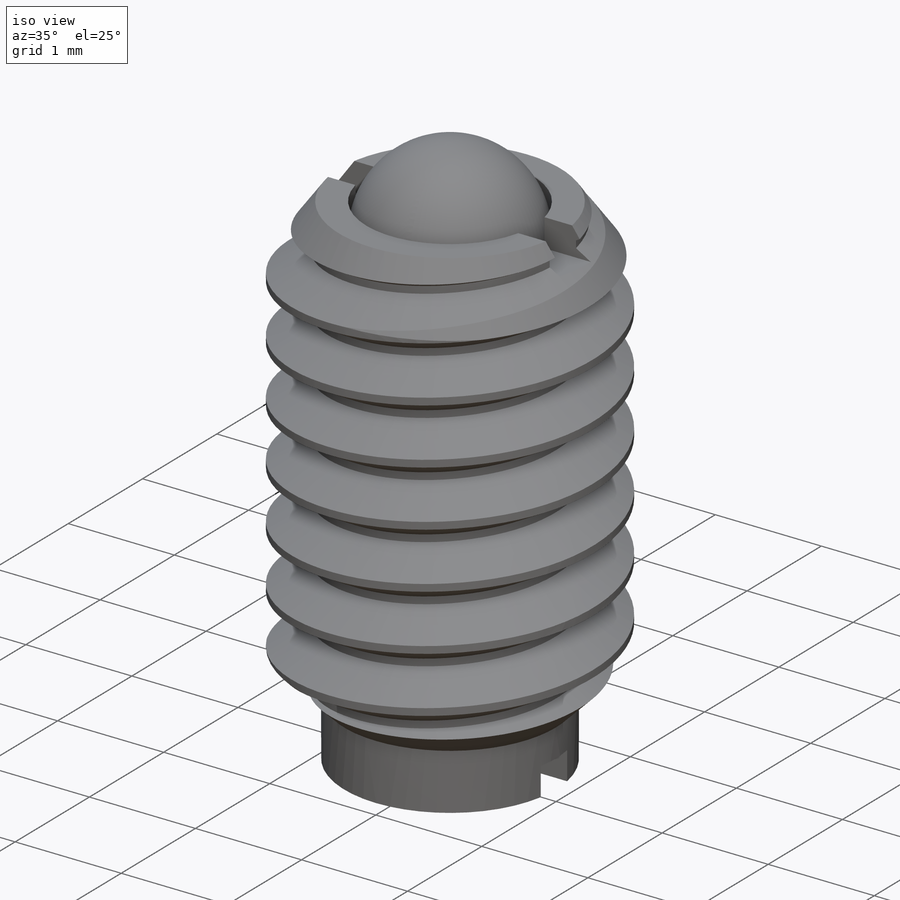
[diagram: iso view]
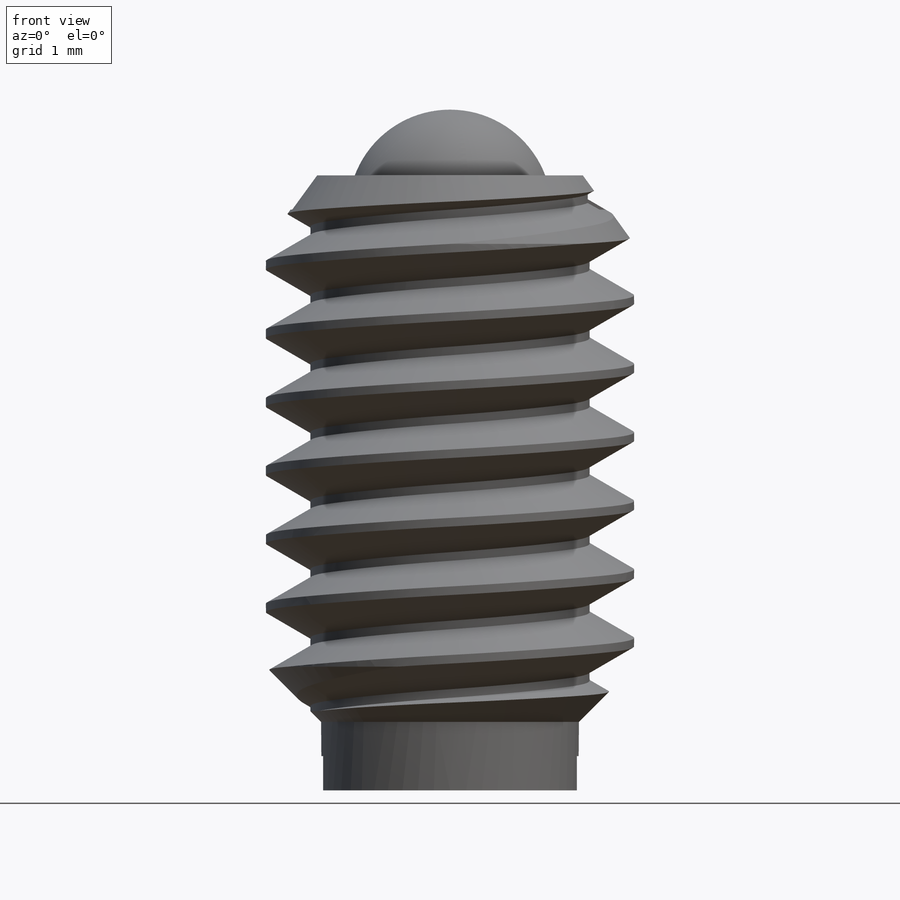
[diagram: front view]
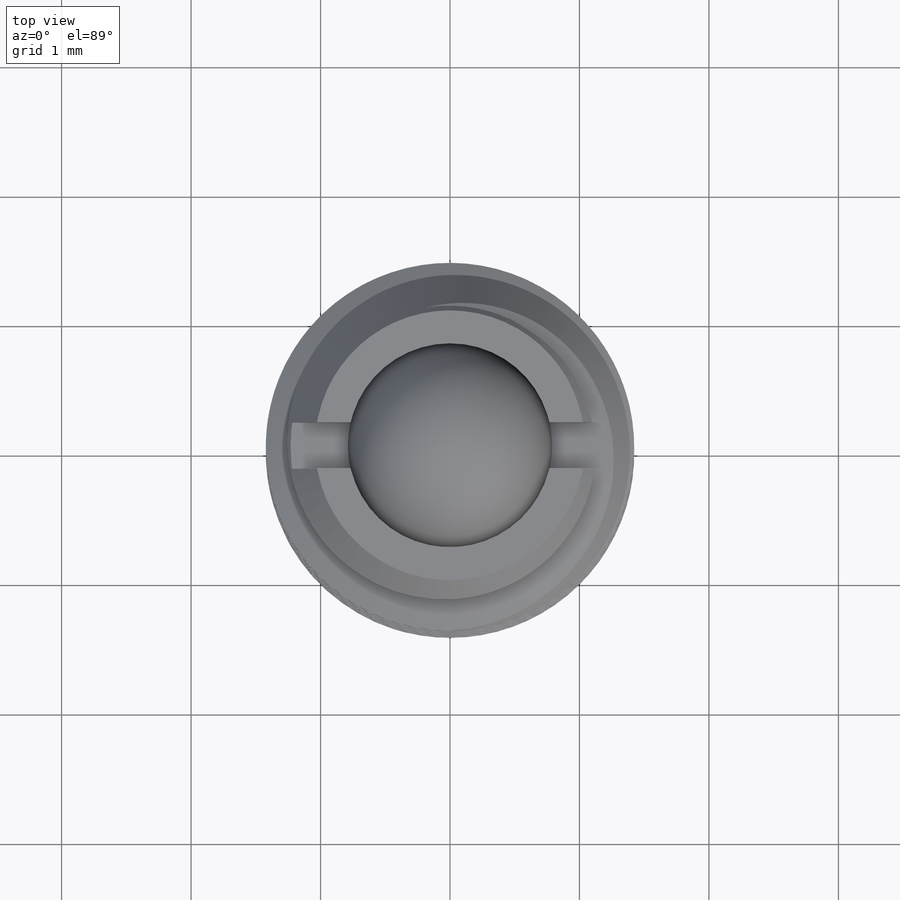
[diagram: top view]
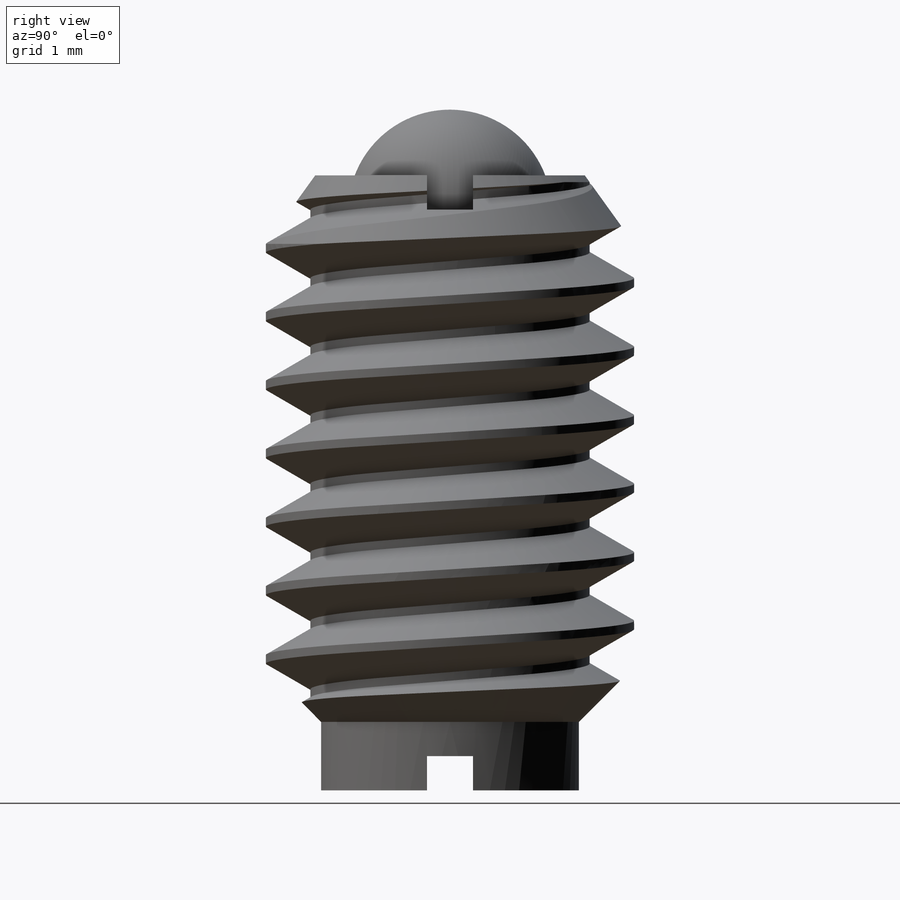
[diagram: right view]
SOLIDWORKS PART (.sldprt)
format: sldprt  version: not decoded by parser v0  size: 857,088 bytes
history: native  units: mm
features: sketch x12, cut_extrude x3, revolve x2, cut_revolve x2, material x1, helix x1, sweep x1, plane x1, extrude x1, dome x1 (+13 scaffold rows collapsed; 1 parser-record rows omitted)
feature tree (39):
  scaffold x13  (default folders/planes/origin — collapsed)
  material  "Material <not specified>"
  sketch  "Sketch24"  dims[Body Length=4.7498mm Screw Dia=2.8448mm D1=~2.38125mm]
  revolve  "Revolve1"  Angle=360deg
  sketch  "Sketch37"  dims[D1=0.0mm]
  helix  "Helix/Spiral1"  Pitch=5.278967mm pitch=0.529167mm
  sketch  "Sketch38"  dims[c1.D1=~0.066146mm c1.D2=~0.264583mm c1.D3=~0.908198mm c2.D3=60.0deg c2.D4=~0.343704mm c2.D5=~1.078696mm c2.D6=~0.171852mm]
  sweep  "Cut-Sweep1"
  sketch  "Sketch26"  dims[c1.Ball Dia=9.525mm c1.D1=~21.390955mm c2.D1=60.0deg c3.D1=~0.47498mm c3.Ball Dia=1.5748mm]
  cut_revolve  "Cut-Revolve10"  Angle=360deg
  sketch  "Sketch31"  dims[c1.D1=~2.60107mm c2.D1=35.0deg c2.D2=0.635mm c3.D1=~1.605957mm c4.D1=60.0deg c4.D3=0.635mm c5.D1=~1.515426mm c6.D1=60.0deg c7.D1=0.254mm c7.D2=~0.163669mm c8.D2=45.0deg c8.D3=~0.529167mm c8.D4=~0.99568mm]
  cut_revolve  "Cut-Revolve13"  Angle=360deg
  sketch  "Sketch28"  dims[D1=0.3556mm D2=2.54mm]
  cut_extrude  "Cut-Extrude11"  [1 undecoded]
  sketch  "Sketch27"  dims[c1.Ball Projection=2.4384mm c2.Ball Projection=0.508mm]
  revolve  "Revolve2"  Angle=360deg
  parser-record x1  (decoder bookkeeping rows leaked as tree rows — omitted from the tree; the rows remain in map.json)
  plane  "Plane1"  Offset=1.4224mm
  sketch  "Sketch21"  dims[c1.D2=~3.239292mm c1.D3=~2.610164mm c1.D1=3.18mm c2.D3=~1.528164mm c2.D1=1.59mm c2.D2=6.7mm c3.D1=~4.767691mm c3.D2=6.7mm c4.D1=~2.760589mm c4.D2=1.3805mm c4.D3=~1.814768mm c4.D4=4.955mm c5.D1=3.1242mm c5.D2=1.5621mm c5.D3=~9.99744mm c5.D4=1.5621mm c6.D3=~9.99744mm c6.D5=1.4224mm c6.D6=~1.84912mm c6.D7=~1.916398mm c6.D2=~70.585525deg]
  sketch  "Sketch41"  dims[D1=0.0mm]
  sketch  "Sketch43"  dims[D1=0.0mm]
  cut_extrude  "Extrude9"  [1 undecoded]
  sketch  "Sketch44"  dims[D1=0.0mm]
  extrude  "Extrude10"  Depth=1.078696mm
  dome  "Dome1"
  sketch  "Sketch45"
  cut_extrude  "Extrude11"  [1 undecoded]
decode coverage: 17 of 23 modeling features carry decoded parameters
note: ~ marks probable driven/reference dimensions
note: 3 parameter values undecoded
summary: no parameter record found for 3 features
note: suppression state not decoded; provenance and decode notes live in map.json
